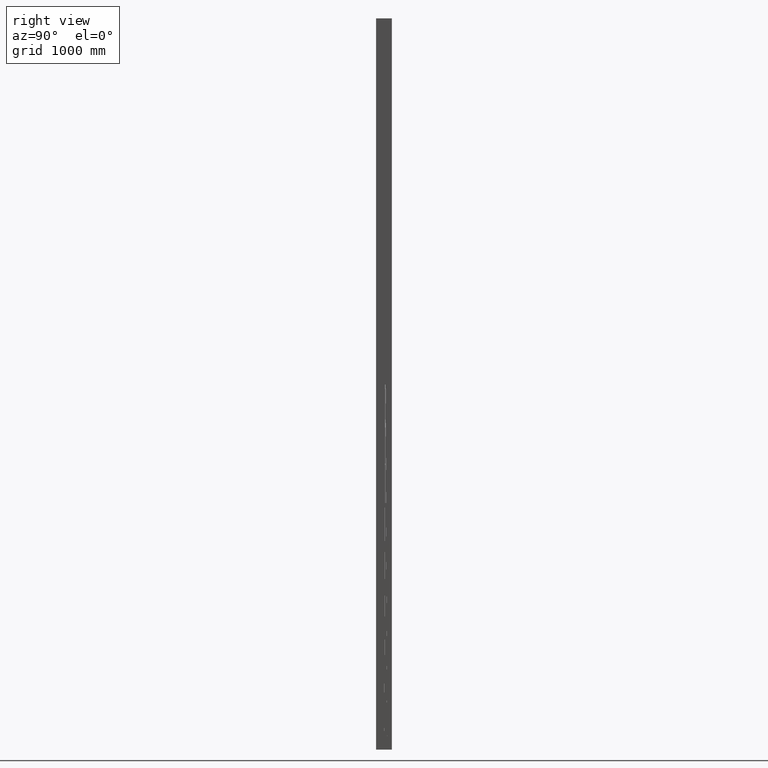
[diagram: clean part render]
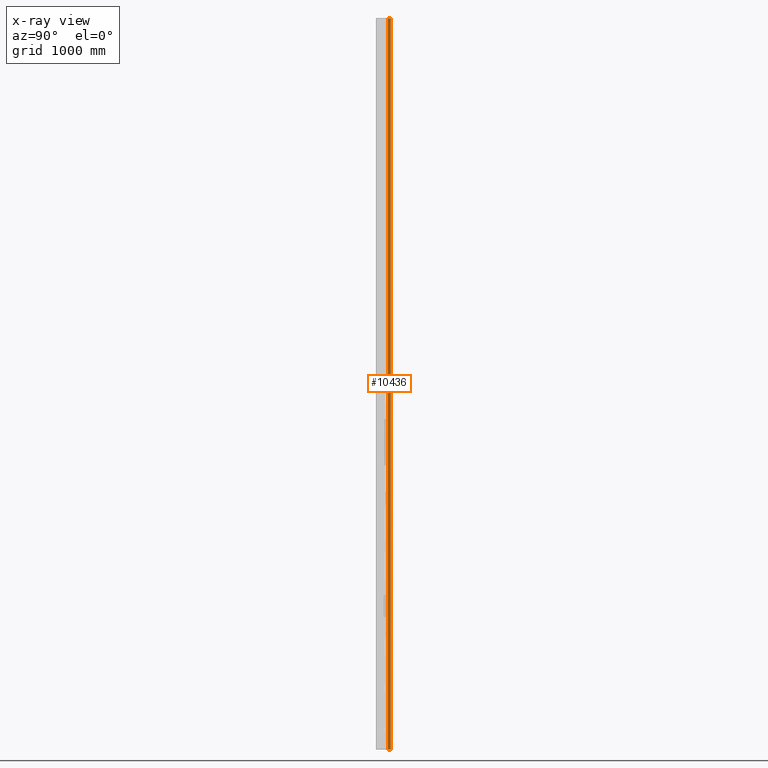
[diagram: x-ray — body ghosted, one internal face saturated and labeled with its STEP entity id]
A machine part, right view, then the same camera in x-ray: the body is ghosted and one INTERNAL B-rep face — a face not visible from any outside direction — is saturated and labeled: STEP entity #10436.
In plain terms, the highlighted planar face has unit normal (-1, 0, 0).
Its self-contained STEP definition (entity closure, byte-faithful):
#361 = LINE ( 'NONE', #4625, #5738 ) ;
#768 = DIRECTION ( 'NONE',  ( -0.0000000000000000000, -0.0000000000000000000, -1.000000000000000000 ) ) ;
#784 = DIRECTION ( 'NONE',  ( -1.000000000000000000, 0.0000000000000000000, 0.0000000000000000000 ) ) ;
#807 = FACE_OUTER_BOUND ( 'NONE', #8037, .T. ) ;
#917 = CARTESIAN_POINT ( 'NONE',  ( 1.300000000000000000, 94.80000000005924200, 3000.000000000000000 ) ) ;
#961 = CARTESIAN_POINT ( 'NONE',  ( 1.300000000000000000, 94.80000000005924200, -3000.000000000000000 ) ) ;
#1708 = VERTEX_POINT ( 'NONE', #12515 ) ;
#1728 = CARTESIAN_POINT ( 'NONE',  ( 1.300000000000000000, 94.80000000005924200, 3000.000000000000000 ) ) ;
#2392 = LINE ( 'NONE', #1728, #11867 ) ;
#2577 = ORIENTED_EDGE ( 'NONE', *, *, #12230, .T. ) ;
#2820 = ORIENTED_EDGE ( 'NONE', *, *, #10175, .F. ) ;
#2969 = CARTESIAN_POINT ( 'NONE',  ( 1.300000000000000000, 118.3000000000592300, 3000.000000000000000 ) ) ;
#3177 = AXIS2_PLACEMENT_3D ( 'NONE', #5946, #784, #6037 ) ;
#3549 = VECTOR ( 'NONE', #6168, 1000.000000000000000 ) ;
#4555 = LINE ( 'NONE', #12632, #10058 ) ;
#4625 = CARTESIAN_POINT ( 'NONE',  ( 1.300000000000000000, 118.3000000000592300, 3000.000000000000000 ) ) ;
#4631 = VERTEX_POINT ( 'NONE', #2969 ) ;
#5118 = EDGE_CURVE ( 'NONE', #7009, #4631, #4555, .T. ) ;
#5738 = VECTOR ( 'NONE', #11845, 1000.000000000000000 ) ;
#5946 = CARTESIAN_POINT ( 'NONE',  ( 1.300000000000000000, 94.80000000005924200, 3000.000000000000000 ) ) ;
#6037 = DIRECTION ( 'NONE',  ( 0.0000000000000000000, 0.0000000000000000000, 1.000000000000000000 ) ) ;
#6168 = DIRECTION ( 'NONE',  ( 0.0000000000000000000, 1.000000000000000000, 0.0000000000000000000 ) ) ;
#6266 = LINE ( 'NONE', #961, #3549 ) ;
#6901 = EDGE_CURVE ( 'NONE', #1708, #13418, #6266, .T. ) ;
#7009 = VERTEX_POINT ( 'NONE', #917 ) ;
#8037 = EDGE_LOOP ( 'NONE', ( #11068, #2820, #11972, #2577 ) ) ;
#8410 = CARTESIAN_POINT ( 'NONE',  ( 1.300000000000000000, 118.3000000000592300, -3000.000000000000000 ) ) ;
#10058 = VECTOR ( 'NONE', #11630, 1000.000000000000000 ) ;
#10175 = EDGE_CURVE ( 'NONE', #4631, #13418, #361, .T. ) ;
#10436 = ADVANCED_FACE ( 'NONE', ( #807 ), #12297, .F. ) ;
#11068 = ORIENTED_EDGE ( 'NONE', *, *, #6901, .T. ) ;
#11630 = DIRECTION ( 'NONE',  ( 0.0000000000000000000, 1.000000000000000000, 0.0000000000000000000 ) ) ;
#11845 = DIRECTION ( 'NONE',  ( -0.0000000000000000000, -0.0000000000000000000, -1.000000000000000000 ) ) ;
#11867 = VECTOR ( 'NONE', #768, 1000.000000000000000 ) ;
#11972 = ORIENTED_EDGE ( 'NONE', *, *, #5118, .F. ) ;
#12230 = EDGE_CURVE ( 'NONE', #7009, #1708, #2392, .T. ) ;
#12297 = PLANE ( 'NONE',  #3177 ) ;
#12515 = CARTESIAN_POINT ( 'NONE',  ( 1.300000000000000000, 94.80000000005924200, -3000.000000000000000 ) ) ;
#12632 = CARTESIAN_POINT ( 'NONE',  ( 1.300000000000000000, 94.80000000005924200, 3000.000000000000000 ) ) ;
#13418 = VERTEX_POINT ( 'NONE', #8410 ) ;